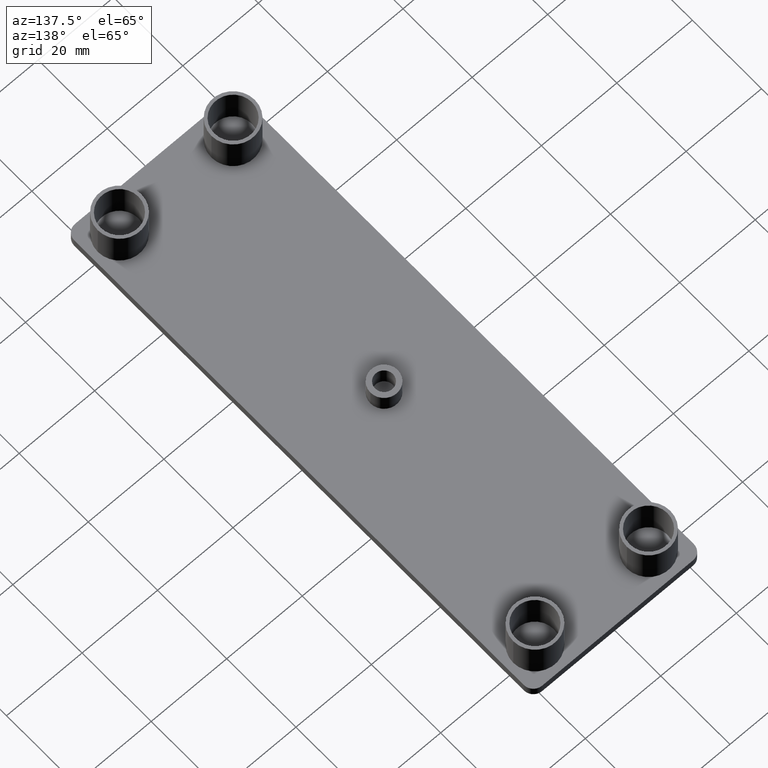
[diagram: clean part render]
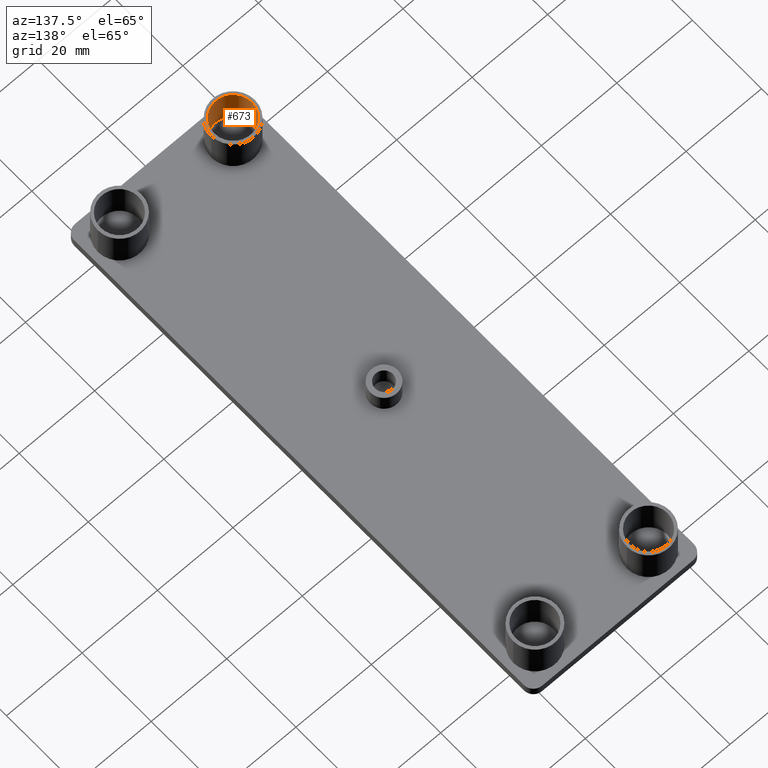
[diagram: same view with one face highlighted and labeled with its STEP entity id]
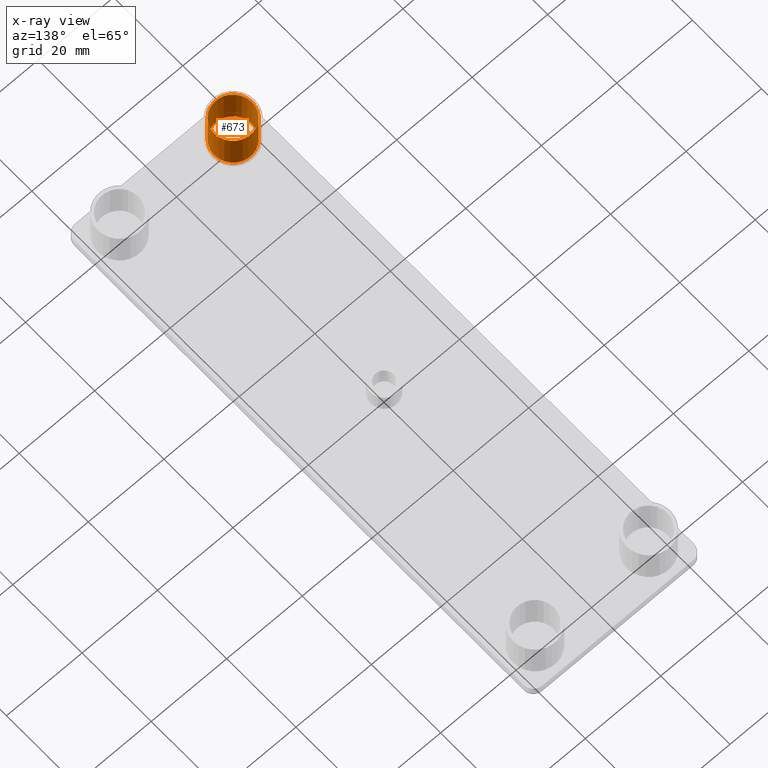
[diagram: x-ray of the same camera — body ghosted, the highlighted face saturated]
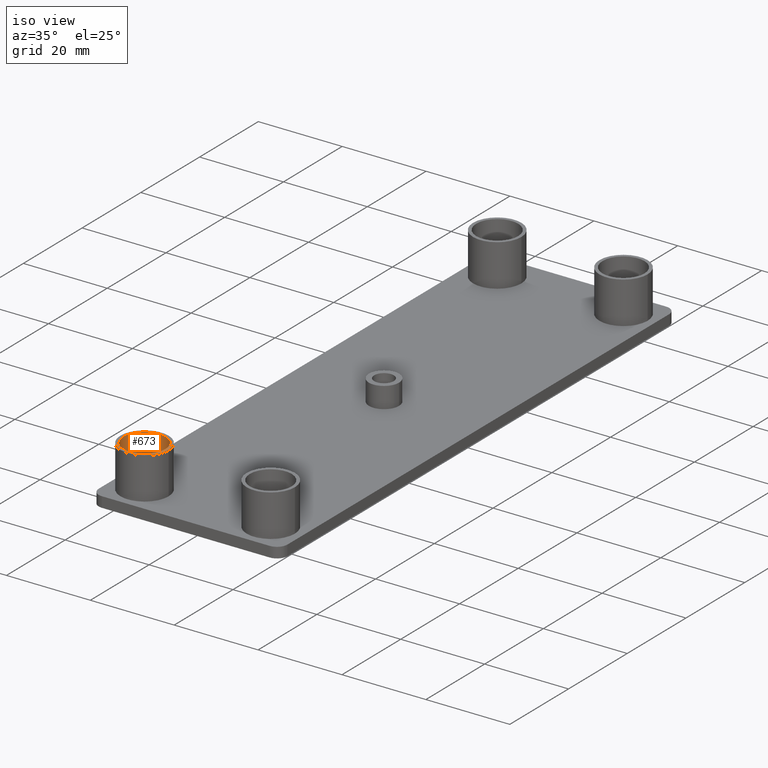
[diagram: same view with one face highlighted and labeled with its STEP entity id]
A machine part, auxiliary view. The second image highlights one B-rep face of the part: STEP entity #673.
The next image is the same camera in x-ray: the body ghosted, the highlighted face saturated — about 0% of this face is hidden behind the body in this view.
A second angle (iso view) of the same face is appended — the face is thin or edge-on in the first view.
In plain terms, the highlighted cylindrical surface (bore or boss wall) has radius 5 mm, axis along (0, 0, -1).
Its self-contained STEP definition (entity closure, byte-faithful):
#405=CARTESIAN_POINT('',(-20.049998666585235,-60.050044499759906,0.0));
#406=VERTEX_POINT('',#405);
#407=CARTESIAN_POINT('',(-10.049998666625243,-60.050044499759906,0.0));
#408=VERTEX_POINT('',#407);
#409=CARTESIAN_POINT('',(-15.049998666605234,-60.050044499759906,0.0));
#410=DIRECTION('',(0.0,0.0,-1.0));
#411=DIRECTION('',(1.0,0.0,0.0));
#412=AXIS2_PLACEMENT_3D('',#409,#410,#411);
#413=CIRCLE('',#412,4.999999999980001);
#414=EDGE_CURVE('',#406,#408,#413,.T.);
#416=CARTESIAN_POINT('',(-15.049998666605234,-60.050044499759906,0.0));
#417=DIRECTION('',(0.0,0.0,-1.0));
#418=DIRECTION('',(1.0,0.0,0.0));
#419=AXIS2_PLACEMENT_3D('',#416,#417,#418);
#420=CIRCLE('',#419,4.999999999980001);
#421=EDGE_CURVE('',#408,#406,#420,.T.);
#639=CARTESIAN_POINT('',(-15.049998666605234,-60.050044499759906,0.0));
#640=DIRECTION('',(0.0,0.0,-1.0));
#641=DIRECTION('',(1.0,-2.449294E-016,0.0));
#642=AXIS2_PLACEMENT_3D('',#639,#640,#641);
#643=CYLINDRICAL_SURFACE('',#642,4.999999999980001);
#644=CARTESIAN_POINT('',(-20.049998666585235,-60.050044499759906,10.0));
#645=VERTEX_POINT('',#644);
#646=CARTESIAN_POINT('',(-10.049998666625243,-60.050044499759906,10.0));
#647=VERTEX_POINT('',#646);
#648=CARTESIAN_POINT('',(-15.049998666605234,-60.050044499759906,10.0));
#649=DIRECTION('',(0.0,0.0,-1.0));
#650=DIRECTION('',(1.0,0.0,0.0));
#651=AXIS2_PLACEMENT_3D('',#648,#649,#650);
#652=CIRCLE('',#651,4.999999999980001);
#653=EDGE_CURVE('',#645,#647,#652,.T.);
#654=ORIENTED_EDGE('',*,*,#653,.F.);
#655=CARTESIAN_POINT('',(-15.049998666605234,-60.050044499759906,10.0));
#656=DIRECTION('',(0.0,0.0,-1.0));
#657=DIRECTION('',(1.0,0.0,0.0));
#658=AXIS2_PLACEMENT_3D('',#655,#656,#657);
#659=CIRCLE('',#658,4.999999999980001);
#660=EDGE_CURVE('',#647,#645,#659,.T.);
#661=ORIENTED_EDGE('',*,*,#660,.F.);
#662=CARTESIAN_POINT('',(-10.049998666625243,-60.050044499759906,0.0));
#663=DIRECTION('',(0.0,0.0,1.0));
#664=VECTOR('',#663,10.0);
#665=LINE('',#662,#664);
#666=EDGE_CURVE('',#408,#647,#665,.T.);
#667=ORIENTED_EDGE('',*,*,#666,.F.);
#668=ORIENTED_EDGE('',*,*,#421,.T.);
#669=ORIENTED_EDGE('',*,*,#414,.T.);
#670=ORIENTED_EDGE('',*,*,#666,.T.);
#671=EDGE_LOOP('',(#654,#661,#667,#668,#669,#670));
#672=FACE_OUTER_BOUND('',#671,.T.);
#673=ADVANCED_FACE('',(#672),#643,.F.);